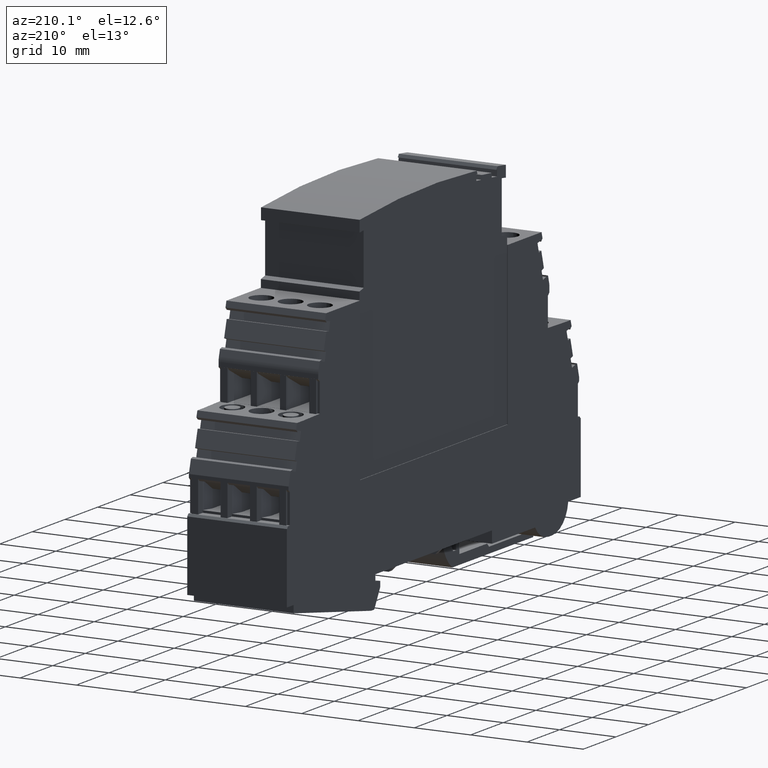
[diagram: clean part render]
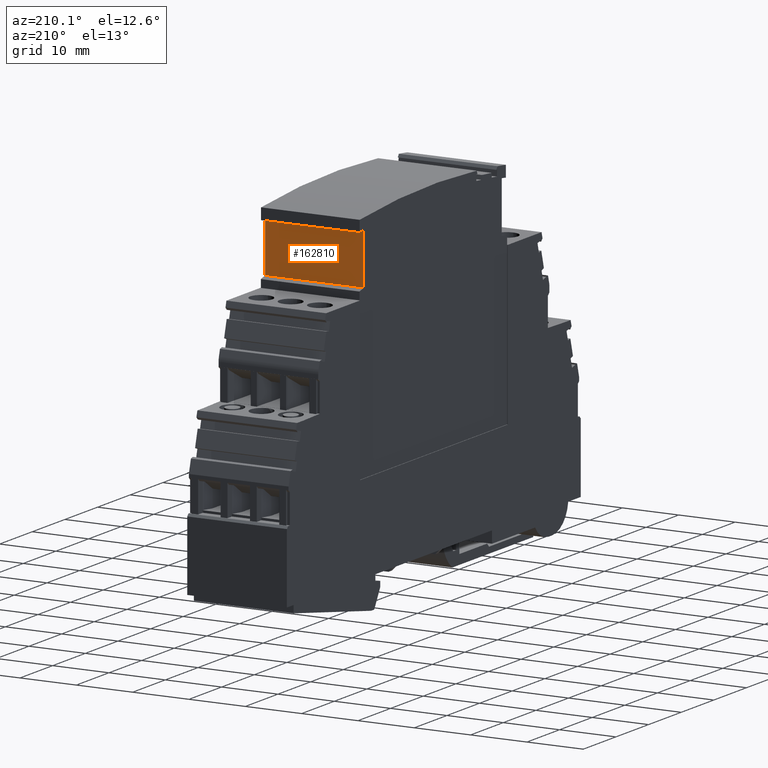
[diagram: same view with one face highlighted and labeled with its STEP entity id]
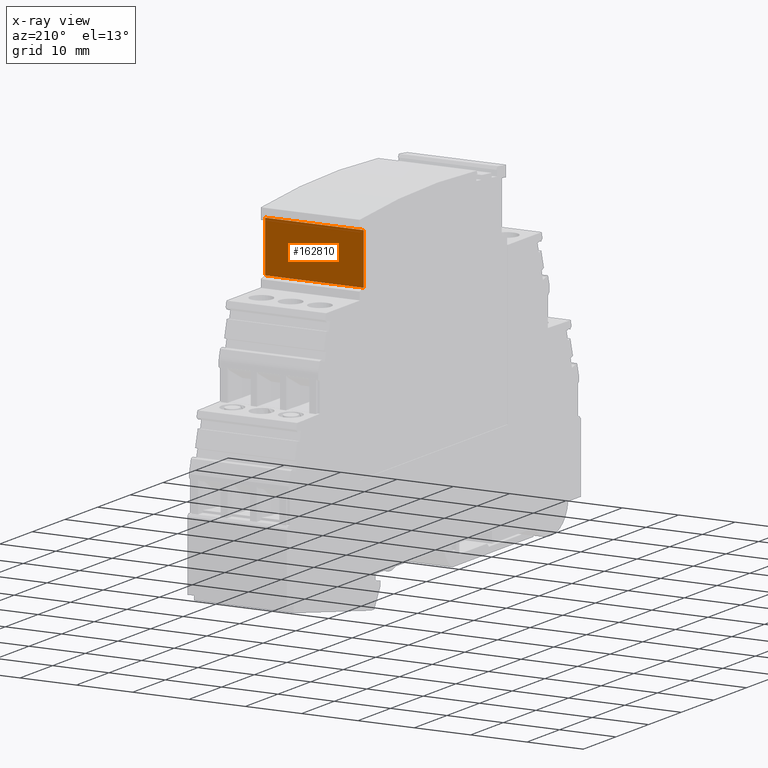
[diagram: x-ray of the same camera — body ghosted, the highlighted face saturated]
A machine part, auxiliary view. The second image highlights one B-rep face of the part: STEP entity #162810.
The next image is the same camera in x-ray: the body ghosted, the highlighted face saturated — about 0% of this face is hidden behind the body in this view.
In plain terms, the highlighted planar face has unit normal (-0, -1, -0).
Its self-contained STEP definition (entity closure, byte-faithful):
#155330=CARTESIAN_POINT('',(48.025618155605,60.787216576086,
-31.8595517602489));
#155340=VERTEX_POINT('',#155330);
#155370=CARTESIAN_POINT('',(48.0256181556048,-15.7,-31.8595517602489));
#155380=DIRECTION('',(3.52944662482313E-15,1.,2.77555756156297E-17));
#155390=VECTOR('',#155380,1.);
#155400=LINE('',#155370,#155390);
#155410=CARTESIAN_POINT('',(48.0256181556051,69.8551859946164,
-31.8595517602489));
#155420=VERTEX_POINT('',#155410);
#155430=EDGE_CURVE('',#155340,#155420,#155400,.T.);
#157840=CARTESIAN_POINT('',(48.0256181556051,69.8551859946164,
-49.3595517602489));
#157850=VERTEX_POINT('',#157840);
#157880=CARTESIAN_POINT('',(48.0256181556048,-15.7,-49.3595517602489));
#157890=DIRECTION('',(3.52944662482313E-15,1.,2.77555756156297E-17));
#157900=VECTOR('',#157890,1.);
#157910=LINE('',#157880,#157900);
#157920=CARTESIAN_POINT('',(48.025618155605,60.787216576086,
-49.359551760249));
#157930=VERTEX_POINT('',#157920);
#157940=EDGE_CURVE('',#157930,#157850,#157910,.T.);
#162490=CARTESIAN_POINT('',(48.0256181556051,69.8551859946164,
-51.229554160249));
#162500=DIRECTION('',(0.,0.,1.));
#162510=VECTOR('',#162500,1.);
#162520=LINE('',#162490,#162510);
#162530=EDGE_CURVE('',#157850,#155420,#162520,.T.);
#162650=CARTESIAN_POINT('',(48.0256181556051,69.8551859946164,
-49.3595517602489));
#162660=DIRECTION('',(1.,-3.52944662482313E-15,4.89858719658941E-16));
#162670=DIRECTION('',(3.52944662482313E-15,1.,2.77555756156295E-17));
#162680=AXIS2_PLACEMENT_3D('',#162650,#162660,#162670);
#162690=PLANE('',#162680);
#162700=ORIENTED_EDGE('',*,*,#157940,.F.);
#162710=ORIENTED_EDGE('',*,*,#162530,.F.);
#162720=ORIENTED_EDGE('',*,*,#155430,.T.);
#162730=CARTESIAN_POINT('',(48.025618155605,60.787216576086,
-84.8000000001849));
#162740=DIRECTION('',(-3.69778549322349E-31,-1.03501672722328E-16,-1.));
#162750=VECTOR('',#162740,1.);
#162760=LINE('',#162730,#162750);
#162770=EDGE_CURVE('',#155340,#157930,#162760,.T.);
#162780=ORIENTED_EDGE('',*,*,#162770,.F.);
#162790=EDGE_LOOP('',(#162780,#162720,#162710,#162700));
#162800=FACE_OUTER_BOUND('',#162790,.T.);
#162810=ADVANCED_FACE('',(#162800),#162690,.F.);